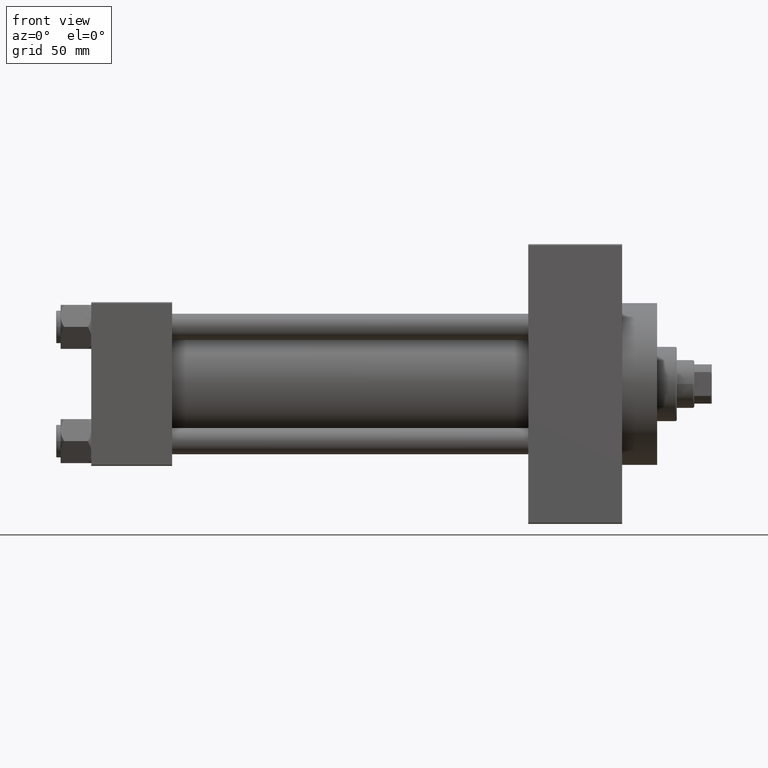
[diagram: clean part render]
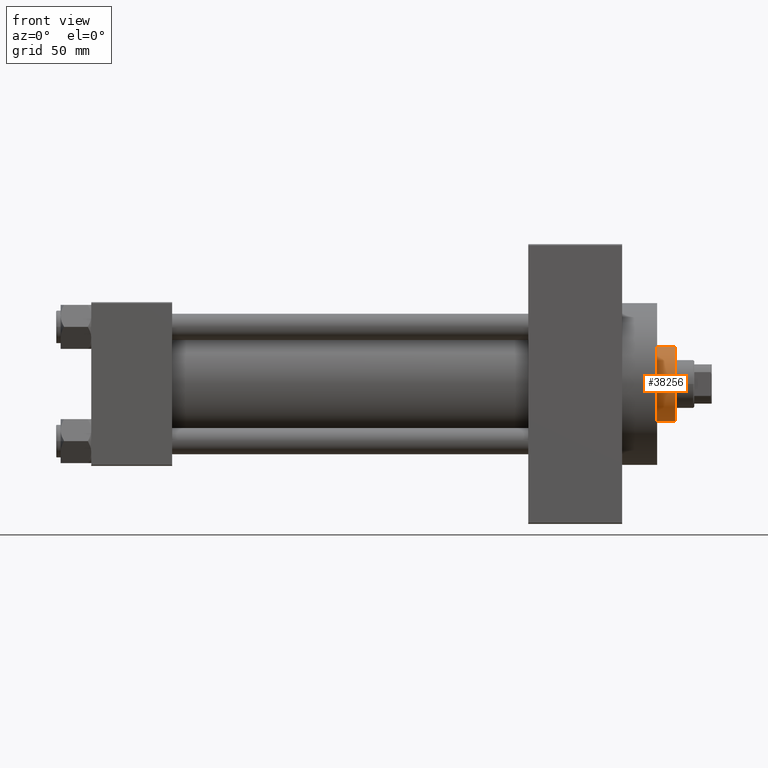
[diagram: same view with one face highlighted and labeled with its STEP entity id]
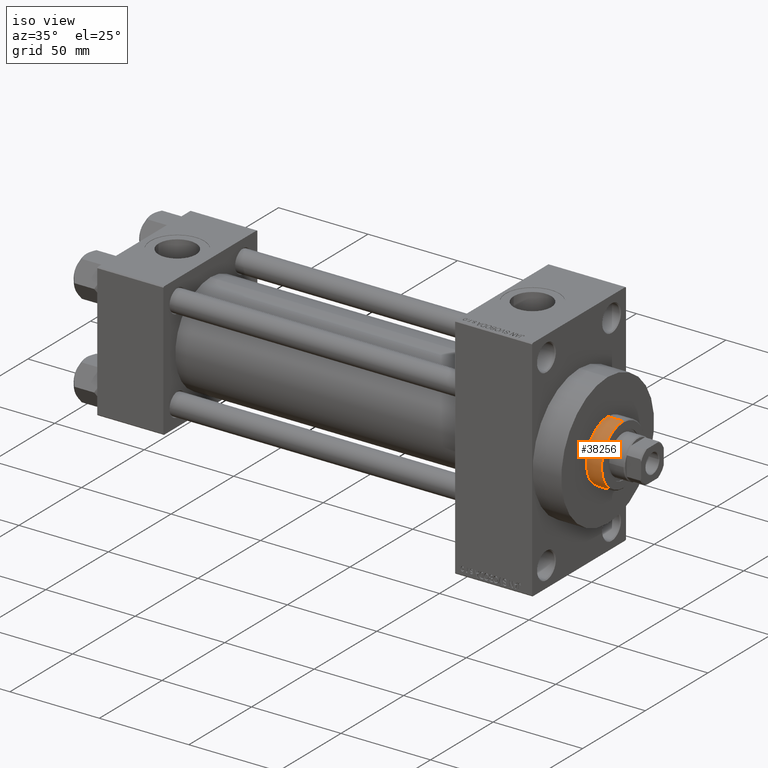
[diagram: same view with one face highlighted and labeled with its STEP entity id]
A machine part, front view. The second image highlights one B-rep face of the part: STEP entity #38256.
A second angle (iso view) of the same face is appended — the face is thin or edge-on in the first view.
In plain terms, the highlighted cylindrical surface (partial cylindrical patch) has radius 17 mm, axis along (-1, 0, 0).
Its self-contained STEP definition (entity closure, byte-faithful):
#955 = DIRECTION ( 'NONE',  ( -0.000000000000000000, -0.000000000000000000, -1.000000000000000000 ) ) ;
#1078 = AXIS2_PLACEMENT_3D ( 'NONE', #32076, #39472, #46170 ) ;
#1499 = VECTOR ( 'NONE', #955, 1000.000000000000000 ) ;
#2760 = CARTESIAN_POINT ( 'NONE',  ( -17.00000000000000000, 0.000000000000000000, 51.76000000000000512 ) ) ;
#3442 = DIRECTION ( 'NONE',  ( 0.000000000000000000, 0.000000000000000000, 1.000000000000000000 ) ) ;
#3529 = AXIS2_PLACEMENT_3D ( 'NONE', #36304, #21509, #25078 ) ;
#4307 = CIRCLE ( 'NONE', #37105, 17.00000000000000000 ) ;
#7160 = CYLINDRICAL_SURFACE ( 'NONE', #3529, 17.00000000000000000 ) ;
#10232 = ORIENTED_EDGE ( 'NONE', *, *, #34118, .T. ) ;
#11810 = CARTESIAN_POINT ( 'NONE',  ( 17.00000000000000000, 2.081899558550500280E-15, 52.25999999999999801 ) ) ;
#15271 = CARTESIAN_POINT ( 'NONE',  ( -17.00000000000000000, 0.000000000000000000, 52.25999999999999801 ) ) ;
#15340 = EDGE_CURVE ( 'NONE', #32522, #33467, #18857, .T. ) ;
#18735 = VECTOR ( 'NONE', #37371, 1000.000000000000000 ) ;
#18857 = LINE ( 'NONE', #15271, #1499 ) ;
#19455 = LINE ( 'NONE', #11810, #18735 ) ;
#19829 = ORIENTED_EDGE ( 'NONE', *, *, #15340, .F. ) ;
#21509 = DIRECTION ( 'NONE',  ( -0.000000000000000000, -0.000000000000000000, -1.000000000000000000 ) ) ;
#21657 = CIRCLE ( 'NONE', #1078, 17.00000000000000000 ) ;
#25078 = DIRECTION ( 'NONE',  ( -1.000000000000000000, 0.000000000000000000, 0.000000000000000000 ) ) ;
#26075 = CARTESIAN_POINT ( 'NONE',  ( -17.00000000000000000, 0.000000000000000000, 43.25999999999999801 ) ) ;
#28488 = VERTEX_POINT ( 'NONE', #33640 ) ;
#28685 = EDGE_LOOP ( 'NONE', ( #10232, #40494, #47014, #19829 ) ) ;
#29190 = CARTESIAN_POINT ( 'NONE',  ( 17.00000000000000000, 2.081899558550500280E-15, 51.76000000000000512 ) ) ;
#32076 = CARTESIAN_POINT ( 'NONE',  ( 0.000000000000000000, 0.000000000000000000, 51.76000000000000512 ) ) ;
#32522 = VERTEX_POINT ( 'NONE', #2760 ) ;
#33467 = VERTEX_POINT ( 'NONE', #26075 ) ;
#33640 = CARTESIAN_POINT ( 'NONE',  ( 17.00000000000000000, 2.081899558550500280E-15, 43.25999999999999801 ) ) ;
#34118 = EDGE_CURVE ( 'NONE', #32522, #43805, #21657, .T. ) ;
#36304 = CARTESIAN_POINT ( 'NONE',  ( 0.000000000000000000, 0.000000000000000000, 52.25999999999999801 ) ) ;
#37105 = AXIS2_PLACEMENT_3D ( 'NONE', #46893, #3442, #39269 ) ;
#37371 = DIRECTION ( 'NONE',  ( -0.000000000000000000, -0.000000000000000000, -1.000000000000000000 ) ) ;
#37488 = EDGE_CURVE ( 'NONE', #43805, #28488, #19455, .T. ) ;
#38256 = ADVANCED_FACE ( 'NONE', ( #43715 ), #7160, .T. ) ;
#39269 = DIRECTION ( 'NONE',  ( 1.000000000000000000, 0.000000000000000000, 0.000000000000000000 ) ) ;
#39472 = DIRECTION ( 'NONE',  ( 0.000000000000000000, 0.000000000000000000, -1.000000000000000000 ) ) ;
#40014 = EDGE_CURVE ( 'NONE', #28488, #33467, #4307, .T. ) ;
#40494 = ORIENTED_EDGE ( 'NONE', *, *, #37488, .T. ) ;
#43715 = FACE_OUTER_BOUND ( 'NONE', #28685, .T. ) ;
#43805 = VERTEX_POINT ( 'NONE', #29190 ) ;
#46170 = DIRECTION ( 'NONE',  ( 1.000000000000000000, 0.000000000000000000, 0.000000000000000000 ) ) ;
#46893 = CARTESIAN_POINT ( 'NONE',  ( 0.000000000000000000, 0.000000000000000000, 43.25999999999999801 ) ) ;
#47014 = ORIENTED_EDGE ( 'NONE', *, *, #40014, .T. ) ;